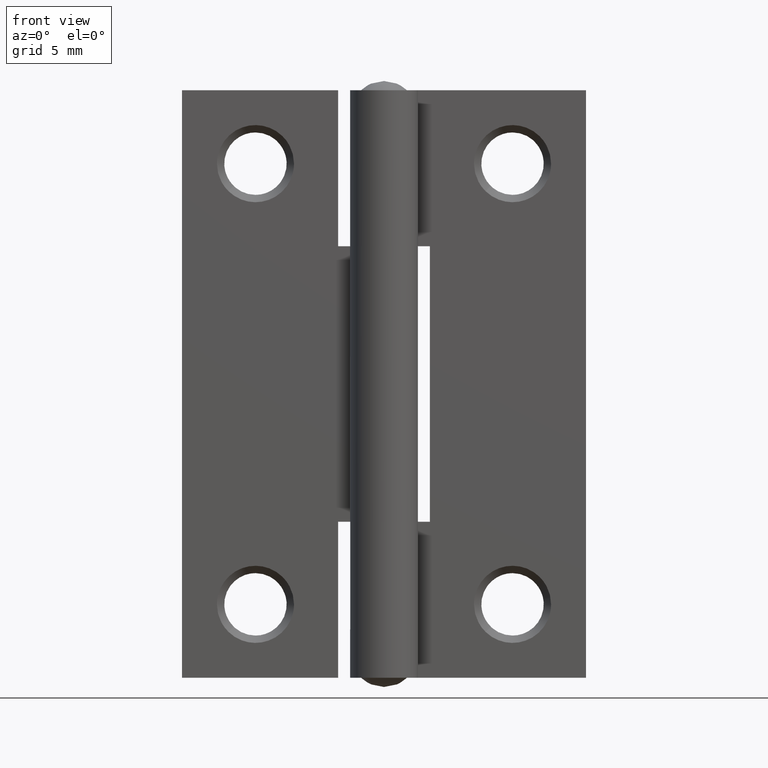
[diagram: clean part render]
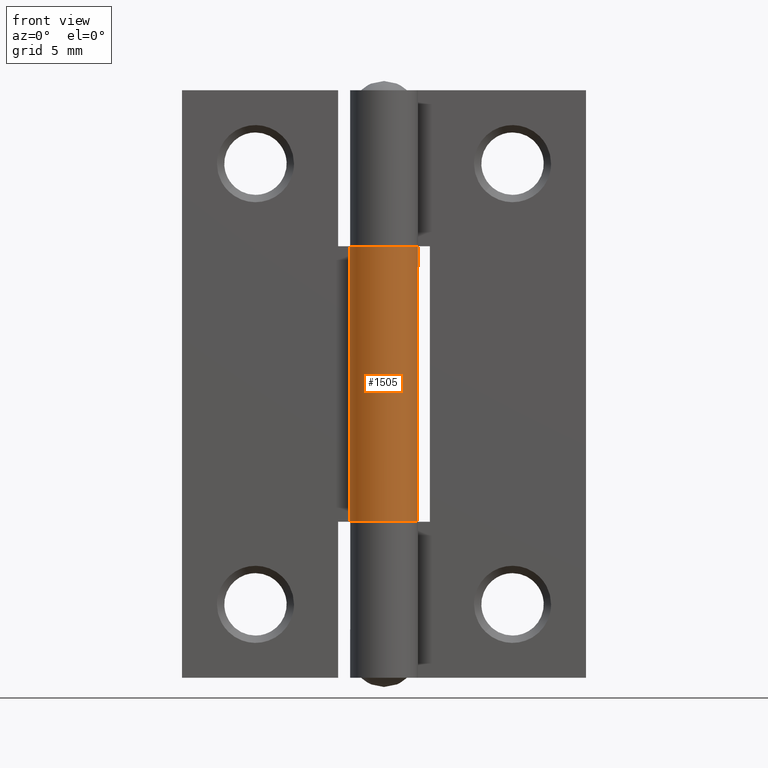
[diagram: same view with one face highlighted and labeled with its STEP entity id]
A machine part, front view. The second image highlights one B-rep face of the part: STEP entity #1505.
In plain terms, the highlighted face is a freeform B-spline surface patch.
Its self-contained STEP definition (entity closure, byte-faithful):
#1040=CARTESIAN_POINT('',(-0.005770608244550,1.849990999999905,23.500007000000000));
#1041=VERTEX_POINT('',#1040);
#1042=CARTESIAN_POINT('',(2.984280E-013,1.849990999999905,23.500007000000000));
#1043=VERTEX_POINT('',#1042);
#1044=CARTESIAN_POINT('',(-0.005770608244550,1.849990999999905,23.500007000000000));
#1045=CARTESIAN_POINT('',(2.984280E-013,1.849990999999905,23.500007000000000));
#1046=QUASI_UNIFORM_CURVE('',1,(#1044,#1045),.UNSPECIFIED.,.F.,.U.);
#1047=EDGE_CURVE('',#1041,#1043,#1046,.T.);
#1104=CARTESIAN_POINT('',(-1.556444024023460,0.999990999999852,23.500007000000000));
#1105=VERTEX_POINT('',#1104);
#1111=CARTESIAN_POINT('',(2.984280E-013,1.849990999999905,23.500007000000000));
#1112=CARTESIAN_POINT('',(0.108177778478720,1.849994218120380,23.500007000000000));
#1113=CARTESIAN_POINT('',(0.356360326125870,1.828183173324329,23.500007000000078));
#1114=CARTESIAN_POINT('',(0.694008016176961,1.727814154712795,23.500006999999879));
#1115=CARTESIAN_POINT('',(0.982091852445360,1.575966307511743,23.500007000000199));
#1116=CARTESIAN_POINT('',(1.233769079386132,1.390688402404311,23.500006999999719));
#1117=CARTESIAN_POINT('',(1.473251444515932,1.141700502394804,23.500007000000149));
#1118=CARTESIAN_POINT('',(1.665296778413767,0.831474181563605,23.500006999999989));
#1119=CARTESIAN_POINT('',(1.803772047441495,0.467418544546477,23.500006999999972));
#1120=CARTESIAN_POINT('',(1.864978382554947,0.081082444201418,23.500007000000149));
#1121=CARTESIAN_POINT('',(1.836113648445023,-0.301892270342849,23.500006999999570));
#1122=CARTESIAN_POINT('',(1.748855572745577,-0.628725872718021,23.500007000000910));
#1123=CARTESIAN_POINT('',(1.616878295362433,-0.919592274832460,23.500006999999801));
#1124=CARTESIAN_POINT('',(1.409219346204000,-1.218903398983509,23.500006999999339));
#1125=CARTESIAN_POINT('',(1.097570311482453,-1.513883369768202,23.500007000000611));
#1126=CARTESIAN_POINT('',(0.732067616122574,-1.715962771189590,23.500007000001698));
#1127=CARTESIAN_POINT('',(0.364177183267117,-1.822932594831406,23.500006999997389));
#1128=CARTESIAN_POINT('',(0.027764620845607,-1.861093397720125,23.500007000002430));
#1129=CARTESIAN_POINT('',(-0.284757541429981,-1.836657230274385,23.500006999999108));
#1130=CARTESIAN_POINT('',(-0.612737229929251,-1.755300010216983,23.500007000000330));
#1131=CARTESIAN_POINT('',(-0.946879946957731,-1.608765093632754,23.500006999999851));
#1132=CARTESIAN_POINT('',(-1.259300100717586,-1.373401215104563,23.500007000000060));
#1133=CARTESIAN_POINT('',(-1.524200507469361,-1.070654758394387,23.500007000000029));
#1134=CARTESIAN_POINT('',(-1.730350506644016,-0.708697064270458,23.500006999999890));
#1135=CARTESIAN_POINT('',(-1.851335001739560,-0.262485313453064,23.500007000000281));
#1136=CARTESIAN_POINT('',(-1.856279730455200,0.154034013689258,23.500006999998931));
#1137=CARTESIAN_POINT('',(-1.774591876999924,0.580492824332780,23.500007000004111));
#1138=CARTESIAN_POINT('',(-1.656270781187399,0.844764764549991,23.500006999994969));
#1139=CARTESIAN_POINT('',(-1.556444024023460,0.999990999999852,23.500007000000000));
#1140=B_SPLINE_CURVE_WITH_KNOTS('',3,(#1111,#1112,#1113,#1114,#1115,#1116,#1117,#1118,#1119,#1120,#1121,#1122,#1123,#1124,#1125,#1126,#1127,#1128,#1129,#1130,#1131,#1132,#1133,#1134,#1135,#1136,#1137,#1138,#1139),.UNSPECIFIED.,.F.,.U.,(4,1,1,1,1,1,1,1,1,1,1,1,1,1,1,1,1,1,1,1,1,1,1,1,1,1,4),(0.000000167010374,0.324537723461830,0.744536614925629,1.049986417077003,1.298169301803236,1.679991733221685,2.080891488372196,2.386343535072744,2.844514438846733,3.245412180985542,3.531779374940724,3.856323628540282,4.199964097600339,4.619955285494339,5.135386368856966,5.440849632189212,5.765391066039619,6.147206963891583,6.376299798890954,6.777200193407417,7.235388978634106,7.540826792510181,7.979911967517364,8.476270823540993,8.915365099888399,9.220809788593428,9.774439306901975),.UNSPECIFIED.);
#1141=EDGE_CURVE('',#1043,#1105,#1140,.T.);
#1181=CARTESIAN_POINT('',(-1.556444024023460,0.999990999999852,8.500000000000000));
#1182=VERTEX_POINT('',#1181);
#1235=CARTESIAN_POINT('',(-0.005770608244550,1.849990999999905,8.500000000000000));
#1236=VERTEX_POINT('',#1235);
#1242=CARTESIAN_POINT('',(2.984280E-013,1.849990999999905,8.500000000000000));
#1243=VERTEX_POINT('',#1242);
#1244=CARTESIAN_POINT('',(2.984280E-013,1.849990999999905,8.500000000000000));
#1245=CARTESIAN_POINT('',(-0.005770608244550,1.849990999999905,8.500000000000000));
#1246=QUASI_UNIFORM_CURVE('',1,(#1244,#1245),.UNSPECIFIED.,.F.,.U.);
#1247=EDGE_CURVE('',#1243,#1236,#1246,.T.);
#1249=CARTESIAN_POINT('',(-1.556444024023460,0.999990999999852,8.500000000000000));
#1250=CARTESIAN_POINT('',(-1.639036141239469,0.871523134723661,8.499999999999993));
#1251=CARTESIAN_POINT('',(-1.747117491054520,0.646007681688421,8.500000000000011));
#1252=CARTESIAN_POINT('',(-1.845082460102940,0.256009846834569,8.499999999999989));
#1253=CARTESIAN_POINT('',(-1.862018870063659,-0.121945609332403,8.500000000000014));
#1254=CARTESIAN_POINT('',(-1.786645675872331,-0.530903521127518,8.499999999999972));
#1255=CARTESIAN_POINT('',(-1.651558976242339,-0.856013366688948,8.499999999999998));
#1256=CARTESIAN_POINT('',(-1.471298324952315,-1.134530659780123,8.500000000000025));
#1257=CARTESIAN_POINT('',(-1.248729848657852,-1.381117635895579,8.500000000000147));
#1258=CARTESIAN_POINT('',(-0.966442572134962,-1.591475240977464,8.499999999999952));
#1259=CARTESIAN_POINT('',(-0.620369407367365,-1.756242560142121,8.500000000000016));
#1260=CARTESIAN_POINT('',(-0.266043363516775,-1.844145996979172,8.499999999999996));
#1261=CARTESIAN_POINT('',(0.078846683554434,-1.856790227580626,8.500000000000007));
#1262=CARTESIAN_POINT('',(0.395232867856992,-1.815960195426307,8.499999999999998));
#1263=CARTESIAN_POINT('',(0.688879765272558,-1.727221908937517,8.500000000000007));
#1264=CARTESIAN_POINT('',(0.956584793397540,-1.591597675446740,8.499999999999998));
#1265=CARTESIAN_POINT('',(1.216409836411678,-1.406704199097862,8.499999999999995));
#1266=CARTESIAN_POINT('',(1.422824532913824,-1.196729539671148,8.500000000000036));
#1267=CARTESIAN_POINT('',(1.604544954200857,-0.934794677412914,8.499999999999911));
#1268=CARTESIAN_POINT('',(1.725740246626655,-0.688291518566538,8.500000000000272));
#1269=CARTESIAN_POINT('',(1.807888835512902,-0.419847554878373,8.499999999999536));
#1270=CARTESIAN_POINT('',(1.851949447524465,-0.142702695410602,8.500000000000705));
#1271=CARTESIAN_POINT('',(1.853042572041812,0.215033313812405,8.499999999999572));
#1272=CARTESIAN_POINT('',(1.773532482421189,0.572271189187533,8.500000000000162));
#1273=CARTESIAN_POINT('',(1.623423427068781,0.903522044374624,8.499999999999963));
#1274=CARTESIAN_POINT('',(1.439925474354923,1.180424835246178,8.499999999999993));
#1275=CARTESIAN_POINT('',(1.187483040149214,1.434909719103747,8.500000000000075));
#1276=CARTESIAN_POINT('',(0.889718644424732,1.633479484070216,8.499999999999634));
#1277=CARTESIAN_POINT('',(0.502655951349979,1.800664030161478,8.500000000001199));
#1278=CARTESIAN_POINT('',(0.197281107754238,1.850087666827890,8.499999999999131));
#1279=CARTESIAN_POINT('',(2.984280E-013,1.849990999999905,8.500000000000000));
#1280=B_SPLINE_CURVE_WITH_KNOTS('',3,(#1249,#1250,#1251,#1252,#1253,#1254,#1255,#1256,#1257,#1258,#1259,#1260,#1261,#1262,#1263,#1264,#1265,#1266,#1267,#1268,#1269,#1270,#1271,#1272,#1273,#1274,#1275,#1276,#1277,#1278,#1279),.UNSPECIFIED.,.F.,.U.,(4,1,1,1,1,1,1,1,1,1,1,1,1,1,1,1,1,1,1,1,1,1,1,1,1,1,1,1,4),(0.000000169057808,0.458168022817498,0.744536620328352,1.202714876837272,1.584536249869615,1.985435611547550,2.252720375915876,2.577226640698480,2.978142585994145,3.302689572461900,3.722687757365517,4.066328117478457,4.333595542236369,4.677225718668430,4.982660849175931,5.230838412831502,5.631754630000518,5.860844719803845,6.185388597758928,6.452658755033699,6.700847554910513,7.025384658920311,7.521719794989298,7.789005186222373,8.113544856880573,8.514452456454531,8.858089804418814,9.182635215987125,9.774439306901927),.UNSPECIFIED.);
#1281=EDGE_CURVE('',#1182,#1243,#1280,.T.);
#1460=CARTESIAN_POINT('',(-1.556444024023460,0.999990999999852,23.500007000000000));
#1461=CARTESIAN_POINT('',(-1.556444024023460,0.999990999999852,8.500000000000000));
#1462=QUASI_UNIFORM_CURVE('',1,(#1460,#1461),.UNSPECIFIED.,.F.,.U.);
#1463=EDGE_CURVE('',#1105,#1182,#1462,.T.);
#1471=CARTESIAN_POINT('',(-1.527894540315349,1.043090731275858,23.875007175000000));
#1472=CARTESIAN_POINT('',(-1.527894540315349,1.043090731275858,8.115624820625000));
#1473=CARTESIAN_POINT('',(-2.839239312934491,-0.877735960478485,23.875007175000011));
#1474=CARTESIAN_POINT('',(-2.839239312934491,-0.877735960478485,8.115624820625000));
#1475=CARTESIAN_POINT('',(-0.672654895639611,-1.723379062009200,23.875007175000000));
#1476=CARTESIAN_POINT('',(-0.672654895639611,-1.723379062009200,8.115624820625000));
#1477=CARTESIAN_POINT('',(1.493929521655270,-2.569022163539914,23.875007175000011));
#1478=CARTESIAN_POINT('',(1.493929521655270,-2.569022163539914,8.115624820625000));
#1479=CARTESIAN_POINT('',(1.830523396283467,-0.267738857209670,23.875007175000000));
#1480=CARTESIAN_POINT('',(1.830523396283467,-0.267738857209670,8.115624820625000));
#1481=CARTESIAN_POINT('',(2.167117270911664,2.033544449120574,23.875007175000011));
#1482=CARTESIAN_POINT('',(2.167117270911664,2.033544449120574,8.115624820625000));
#1483=CARTESIAN_POINT('',(-0.150901440349816,1.843835338445439,23.875007175000000));
#1484=CARTESIAN_POINT('',(-0.150901440349816,1.843835338445439,8.115624820625000));
#1492=(BOUNDED_SURFACE()B_SPLINE_SURFACE(1,2,((#1471,#1473,#1475,#1477,#1479,#1481,#1483),(#1472,#1474,#1476,#1478,#1480,#1482,#1484)),.UNSPECIFIED.,.F.,.F.,.U.)B_SPLINE_SURFACE_WITH_KNOTS((2,2),(3,2,2,3),(0.0,15.759382354375010),(0.0,3.569336282050021,7.138672564100042,10.708008846150060),.UNSPECIFIED.)GEOMETRIC_REPRESENTATION_ITEM()RATIONAL_B_SPLINE_SURFACE(((1.0,0.622514636637620,1.0,0.622514636637620,1.0,0.622514636637620,1.0),(1.0,0.622514636637620,1.0,0.622514636637620,1.0,0.622514636637620,1.0)))REPRESENTATION_ITEM('')SURFACE());
#1493=ORIENTED_EDGE('',*,*,#1047,.T.);
#1494=ORIENTED_EDGE('',*,*,#1141,.T.);
#1495=ORIENTED_EDGE('',*,*,#1463,.T.);
#1496=ORIENTED_EDGE('',*,*,#1281,.T.);
#1497=ORIENTED_EDGE('',*,*,#1247,.T.);
#1498=CARTESIAN_POINT('',(-0.005770608244550,1.849990999999905,23.500007000000000));
#1499=CARTESIAN_POINT('',(-0.005770608244550,1.849990999999905,8.500000000000000));
#1500=QUASI_UNIFORM_CURVE('',1,(#1498,#1499),.UNSPECIFIED.,.F.,.U.);
#1501=EDGE_CURVE('',#1041,#1236,#1500,.T.);
#1502=ORIENTED_EDGE('',*,*,#1501,.F.);
#1503=EDGE_LOOP('',(#1493,#1494,#1495,#1496,#1497,#1502));
#1504=FACE_OUTER_BOUND('',#1503,.T.);
#1505=ADVANCED_FACE('',(#1504),#1492,.T.);